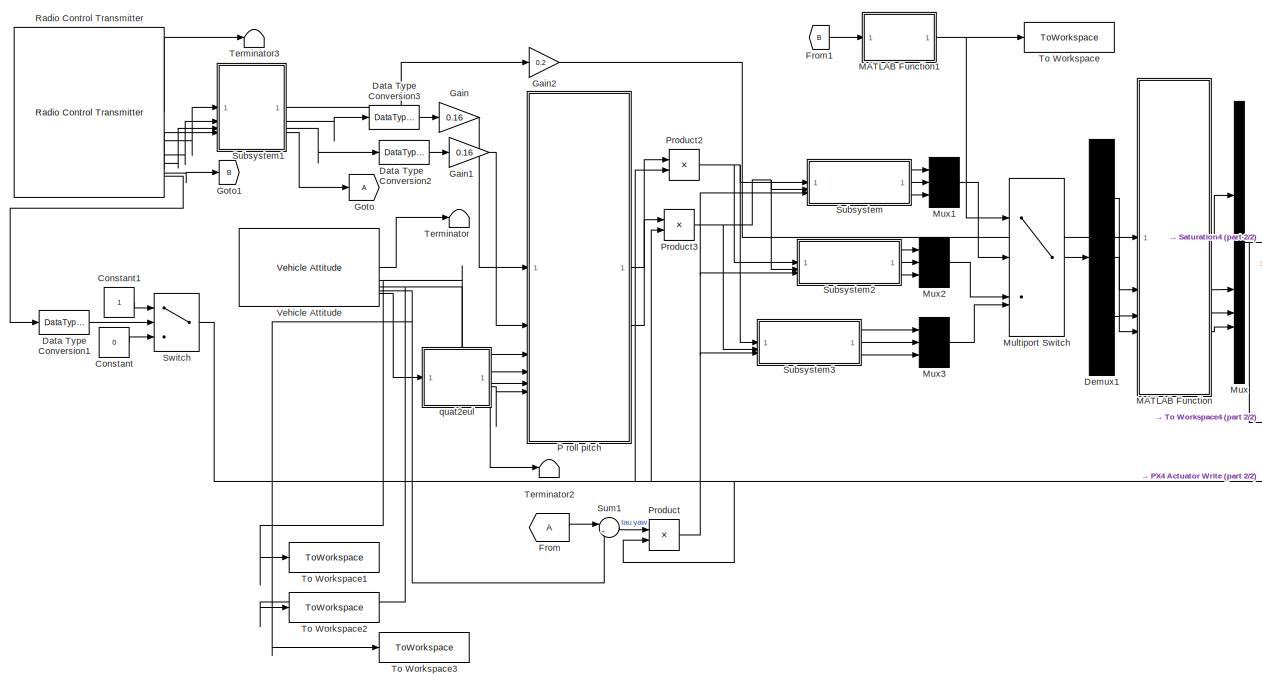
[diagram: root canvas - part 1/2, most of the canvas]
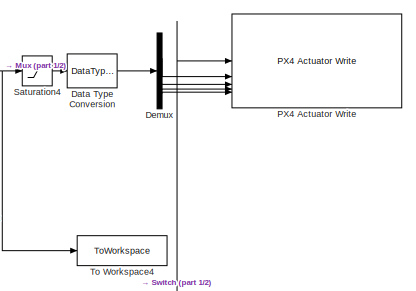
[diagram: root canvas - part 2/2, middle right region]
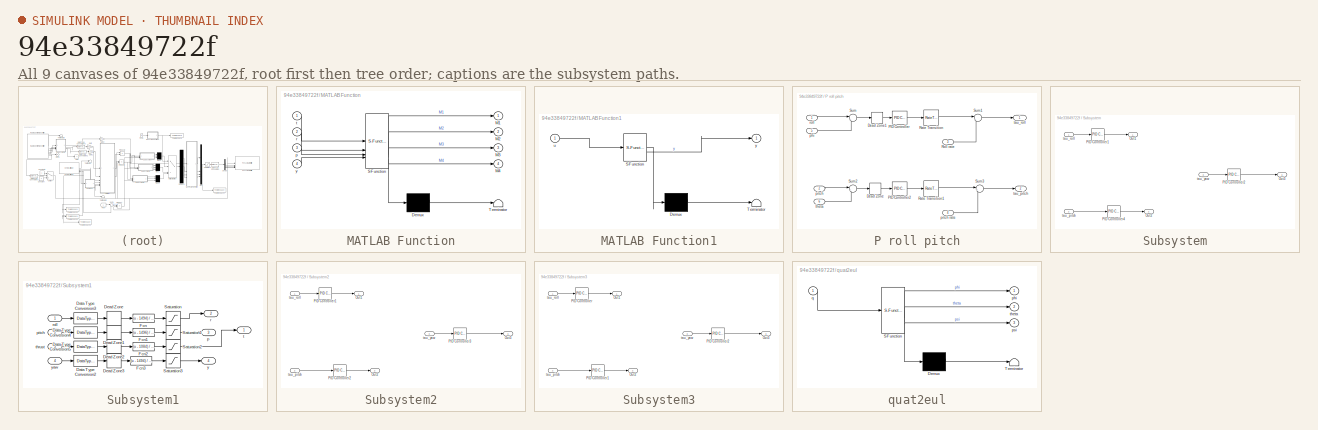
[diagram: thumbnail index - all 9 canvases of the model, root first then tree order]
MODEL slx_94e33849722f
KIND model
CONFIG AbsTol = auto
CONFIG EnableMultiTasking = on
CONFIG FixedStep = 0.001
CONFIG MaxStep = auto
CONFIG MinStep = auto
CONFIG RelTol = 1e-3
CONFIG SampleTimeConstraint = Unconstrained
CONFIG SolverName = FixedStepAuto
CONFIG StartTime = 0.0
CONFIG StopTime = inf
BLOCK [Constant] Constant
  OutDataTypeStr = boolean
  Value = 0
BLOCK [Constant] Constant1
  OutDataTypeStr = boolean
BLOCK [DataTypeConversion] Data Type Conversion
  OutDataTypeStr = single
  RndMeth = Floor
  SaturateOnIntegerOverflow = off
BLOCK [DataTypeConversion] Data Type Conversion1
  OutDataTypeStr = single
  RndMeth = Floor
  SaturateOnIntegerOverflow = off
BLOCK [DataTypeConversion] Data Type Conversion2
  OutDataTypeStr = single
  RndMeth = Floor
  SaturateOnIntegerOverflow = off
BLOCK [DataTypeConversion] Data Type Conversion3
  OutDataTypeStr = single
  RndMeth = Floor
  SaturateOnIntegerOverflow = off
BLOCK [Demux] Demux
BLOCK [Demux] Demux1
  Outputs = 3
BLOCK [From] From
BLOCK [From] From1
  GotoTag = B
BLOCK [Gain] Gain
  Gain = 0.16
BLOCK [Gain] Gain1
  Gain = 0.16
BLOCK [Gain] Gain2
  Gain = 0.2
BLOCK [Goto] Goto
BLOCK [Goto] Goto1
  GotoTag = B
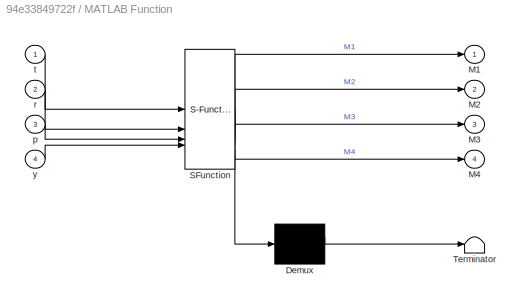
BLOCK [SubSystem] MATLAB Function
  ErrorFcn = Stateflow.Translate.translate
  PermitHierarchicalResolution = ExplicitOnly
  SFBlockType = MATLAB Function
  TreatAsAtomicUnit = on
BLOCK [Demux] MATLAB Function/ Demux 
  Outputs = 1
BLOCK [S-Function] MATLAB Function/ SFunction 
  EnableBusSupport = off
  FunctionName = sf_sfun
  PortCounts = [4 5]
  SFcnIsStateOwnerBlock = off
  SFunctionDeploymentMode = off
  Tag = Stateflow S-Function 2
BLOCK [Terminator] MATLAB Function/ Terminator 
BLOCK [Outport] MATLAB Function/M1
BLOCK [Outport] MATLAB Function/M2
  Port = 2
BLOCK [Outport] MATLAB Function/M3
  Port = 3
BLOCK [Outport] MATLAB Function/M4
  Port = 4
BLOCK [Inport] MATLAB Function/p
  Port = 3
BLOCK [Inport] MATLAB Function/r
  Port = 2
BLOCK [Inport] MATLAB Function/t
BLOCK [Inport] MATLAB Function/y
  Port = 4
BLOCK [SubSystem] MATLAB Function1
  ErrorFcn = Stateflow.Translate.translate
  PermitHierarchicalResolution = ExplicitOnly
  SFBlockType = MATLAB Function
  TreatAsAtomicUnit = on
BLOCK [Demux] MATLAB Function1/ Demux 
  Outputs = 1
BLOCK [S-Function] MATLAB Function1/ SFunction 
  EnableBusSupport = off
  FunctionName = sf_sfun
  PortCounts = [1 2]
  SFcnIsStateOwnerBlock = off
  SFunctionDeploymentMode = off
  Tag = Stateflow S-Function 1
BLOCK [Terminator] MATLAB Function1/ Terminator 
BLOCK [Inport] MATLAB Function1/u
BLOCK [Outport] MATLAB Function1/y
  VectorParamsAs1DForOutWhenUnconnected = off
BLOCK [MultiPortSwitch] Multiport Switch
  InputSameDT = off
  SaturateOnIntegerOverflow = off
BLOCK [Mux] Mux
  DisplayOption = bar
BLOCK [Mux] Mux1
  DisplayOption = bar
  Inputs = 3
BLOCK [Mux] Mux2
  DisplayOption = bar
  Inputs = 3
BLOCK [Mux] Mux3
  DisplayOption = bar
  Inputs = 3
BLOCK [SubSystem] P roll pitch
BLOCK [DeadZone] P roll pitch/Dead Zone
  LowerValue = -0.02
  UpperValue = 0.02
BLOCK [DeadZone] P roll pitch/Dead Zone1
  LowerValue = -0.02
  UpperValue = 0.02
BLOCK [Reference] P roll pitch/PID Controller  REF=slpidlib/PID Controller
  LibrarySourceBlock = simulink/Continuous/PID Controller
  SourceBlock = slpidlib/PID Controller
  SourceType = PID 1dof
BLOCK [Reference] P roll pitch/PID Controller2  REF=slpidlib/PID Controller
  LibrarySourceBlock = simulink/Continuous/PID Controller
  SourceBlock = slpidlib/PID Controller
  SourceType = PID 1dof
BLOCK [RateTransition] P roll pitch/Rate Transition
  OutPortSampleTime = 0.001
BLOCK [RateTransition] P roll pitch/Rate Transition1
  OutPortSampleTime = 0.001
BLOCK [Inport] P roll pitch/Roll rate
  Port = 3
BLOCK [Sum] P roll pitch/Sum
  Inputs = |+-
BLOCK [Sum] P roll pitch/Sum1
  Inputs = |+-
BLOCK [Sum] P roll pitch/Sum2
  Inputs = |+-
BLOCK [Sum] P roll pitch/Sum3
  Inputs = |+-
BLOCK [Inport] P roll pitch/phi
  Port = 5
BLOCK [Inport] P roll pitch/pitch
  Port = 2
BLOCK [Inport] P roll pitch/pitch rate
  Port = 4
BLOCK [Inport] P roll pitch/roll
BLOCK [Outport] P roll pitch/tau_pitch
  Port = 2
BLOCK [Outport] P roll pitch/tau_roll
BLOCK [Inport] P roll pitch/theta
  Port = 6
BLOCK [Reference] PX4 Actuator Write  REF=px4Peripheralslib/PX4 Actuator Write
  SourceBlock = px4Peripheralslib/PX4 Actuator Write
  SourceType = px4.internal.block.PX4Actuators
BLOCK [Product] Product
BLOCK [Product] Product2
BLOCK [Product] Product3
BLOCK [Reference] Radio Control Transmitter  REF=px4Sensorslib/Radio Control Transmitter
  SourceBlock = px4Sensorslib/Radio Control Transmitter
  SourceType = PX4 Radio Control Transmitter
BLOCK [Saturate] Saturation4
  LowerLimit = 0
  UpperLimit = 1
BLOCK [SubSystem] Subsystem
BLOCK [Outport] Subsystem/Out1
BLOCK [Outport] Subsystem/Out2
  Port = 2
BLOCK [Outport] Subsystem/Out3
  Port = 3
BLOCK [Reference] Subsystem/PID Controller1  REF=slpidlib/PID Controller
  LibrarySourceBlock = simulink/Continuous/PID Controller
  SourceBlock = slpidlib/PID Controller
  SourceType = PID 1dof
BLOCK [Reference] Subsystem/PID Controller2  REF=slpidlib/PID Controller
  LibrarySourceBlock = simulink/Continuous/PID Controller
  SourceBlock = slpidlib/PID Controller
  SourceType = PID 1dof
BLOCK [Reference] Subsystem/PID Controller4  REF=slpidlib/PID Controller
  LibrarySourceBlock = simulink/Continuous/PID Controller
  SourceBlock = slpidlib/PID Controller
  SourceType = PID 1dof
BLOCK [Inport] Subsystem/tau_pitch
  Port = 2
BLOCK [Inport] Subsystem/tau_roll
BLOCK [Inport] Subsystem/tau_yaw
  Port = 3
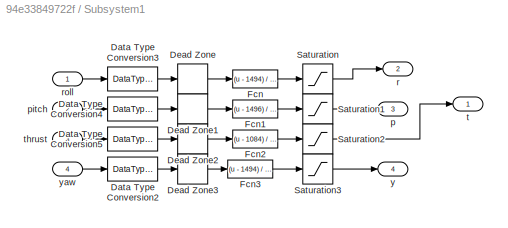
BLOCK [SubSystem] Subsystem1
BLOCK [DataTypeConversion] Subsystem1/Data Type Conversion2
  OutDataTypeStr = single
  RndMeth = Floor
  SaturateOnIntegerOverflow = off
BLOCK [DataTypeConversion] Subsystem1/Data Type Conversion3
  OutDataTypeStr = single
  RndMeth = Floor
  SaturateOnIntegerOverflow = off
BLOCK [DataTypeConversion] Subsystem1/Data Type Conversion4
  OutDataTypeStr = single
  RndMeth = Floor
  SaturateOnIntegerOverflow = off
BLOCK [DataTypeConversion] Subsystem1/Data Type Conversion5
  OutDataTypeStr = single
  RndMeth = Floor
  SaturateOnIntegerOverflow = off
BLOCK [DeadZone] Subsystem1/Dead Zone
  LowerValue = -10
  UpperValue = 10
BLOCK [DeadZone] Subsystem1/Dead Zone1
  LowerValue = -10
  UpperValue = 10
BLOCK [DeadZone] Subsystem1/Dead Zone2
  LowerValue = -5
  UpperValue = 5
BLOCK [DeadZone] Subsystem1/Dead Zone3
  LowerValue = -10
  UpperValue = 10
BLOCK [Fcn] Subsystem1/Fcn
  Expr = (u - 1494) / 409.5
BLOCK [Fcn] Subsystem1/Fcn1
  Expr = (u - 1496) / 409.5
BLOCK [Fcn] Subsystem1/Fcn2
  Expr = (u - 1084) / 819
BLOCK [Fcn] Subsystem1/Fcn3
  Expr = (u - 1494) / 409.5
BLOCK [Saturate] Subsystem1/Saturation
  LowerLimit = -1
  UpperLimit = 1
BLOCK [Saturate] Subsystem1/Saturation1
  LowerLimit = -1
  UpperLimit = 1
BLOCK [Saturate] Subsystem1/Saturation2
  LowerLimit = 0
  UpperLimit = 1
BLOCK [Saturate] Subsystem1/Saturation3
  LowerLimit = -1
  UpperLimit = 1
BLOCK [Outport] Subsystem1/p
  Port = 3
BLOCK [Inport] Subsystem1/pitch
  Port = 2
BLOCK [Outport] Subsystem1/r
  Port = 2
BLOCK [Inport] Subsystem1/roll
BLOCK [Outport] Subsystem1/t
BLOCK [Inport] Subsystem1/thrust
  Port = 3
BLOCK [Outport] Subsystem1/y
  Port = 4
BLOCK [Inport] Subsystem1/yaw
  Port = 4
BLOCK [SubSystem] Subsystem2
BLOCK [Outport] Subsystem2/Out1
BLOCK [Outport] Subsystem2/Out2
  Port = 2
BLOCK [Outport] Subsystem2/Out3
  Port = 3
BLOCK [Reference] Subsystem2/PID Controller1  REF=slpidlib/PID Controller
  LibrarySourceBlock = simulink/Continuous/PID Controller
  SourceBlock = slpidlib/PID Controller
  SourceType = PID 1dof
BLOCK [Reference] Subsystem2/PID Controller2  REF=slpidlib/PID Controller
  LibrarySourceBlock = simulink/Continuous/PID Controller
  SourceBlock = slpidlib/PID Controller
  SourceType = PID 1dof
BLOCK [Reference] Subsystem2/PID Controller3  REF=slpidlib/PID Controller
  LibrarySourceBlock = simulink/Continuous/PID Controller
  SourceBlock = slpidlib/PID Controller
  SourceType = PID 1dof
BLOCK [Inport] Subsystem2/tau_pitch
  Port = 2
BLOCK [Inport] Subsystem2/tau_roll
BLOCK [Inport] Subsystem2/tau_yaw
  Port = 3
BLOCK [SubSystem] Subsystem3
BLOCK [Outport] Subsystem3/Out1
BLOCK [Outport] Subsystem3/Out2
  Port = 2
BLOCK [Outport] Subsystem3/Out3
  Port = 3
BLOCK [Reference] Subsystem3/PID Controller  REF=slpidlib/PID Controller
  LibrarySourceBlock = simulink/Continuous/PID Controller
  SourceBlock = slpidlib/PID Controller
  SourceType = PID 1dof
BLOCK [Reference] Subsystem3/PID Controller1  REF=slpidlib/PID Controller
  LibrarySourceBlock = simulink/Continuous/PID Controller
  SourceBlock = slpidlib/PID Controller
  SourceType = PID 1dof
BLOCK [Reference] Subsystem3/PID Controller2  REF=slpidlib/PID Controller
  LibrarySourceBlock = simulink/Continuous/PID Controller
  SourceBlock = slpidlib/PID Controller
  SourceType = PID 1dof
BLOCK [Inport] Subsystem3/tau_pitch
  Port = 2
BLOCK [Inport] Subsystem3/tau_roll
BLOCK [Inport] Subsystem3/tau_yaw
  Port = 3
BLOCK [Sum] Sum1
  Inputs = |+-
BLOCK [Switch] Switch
  Criteria = u2 > Threshold
  InputSameDT = off
  SaturateOnIntegerOverflow = off
  Threshold = 1500
BLOCK [Terminator] Terminator
BLOCK [Terminator] Terminator2
BLOCK [Terminator] Terminator3
BLOCK [ToWorkspace] To Workspace
  FixptAsFi = on
  MaxDataPoints = inf
  SampleTime = -1
  SaveFormat = Structure With Time
  VariableName = pid
BLOCK [ToWorkspace] To Workspace1
  FixptAsFi = on
  MaxDataPoints = inf
  SampleTime = -1
  SaveFormat = Structure With Time
  VariableName = rollrate
BLOCK [ToWorkspace] To Workspace2
  FixptAsFi = on
  MaxDataPoints = inf
  SampleTime = -1
  SaveFormat = Structure With Time
  VariableName = pitchrate
BLOCK [ToWorkspace] To Workspace3
  FixptAsFi = on
  MaxDataPoints = inf
  SampleTime = -1
  SaveFormat = Structure With Time
  VariableName = yawrate
BLOCK [ToWorkspace] To Workspace4
  FixptAsFi = on
  MaxDataPoints = inf
  SampleTime = -1
  SaveFormat = Structure With Time
  VariableName = motores
BLOCK [Reference] Vehicle Attitude  REF=px4Sensorslib/Vehicle Attitude
  SourceBlock = px4Sensorslib/Vehicle Attitude
  SourceType = PX4 Vehicle Attitude
BLOCK [SubSystem] quat2eul
  ErrorFcn = Stateflow.Translate.translate
  PermitHierarchicalResolution = ExplicitOnly
  SFBlockType = MATLAB Function
  TreatAsAtomicUnit = on
BLOCK [Demux] quat2eul/ Demux 
  Outputs = 1
BLOCK [S-Function] quat2eul/ SFunction 
  EnableBusSupport = off
  FunctionName = sf_sfun
  PortCounts = [1 4]
  SFcnIsStateOwnerBlock = off
  SFunctionDeploymentMode = off
  Tag = Stateflow S-Function 10
BLOCK [Terminator] quat2eul/ Terminator 
BLOCK [Outport] quat2eul/phi
  VectorParamsAs1DForOutWhenUnconnected = off
BLOCK [Outport] quat2eul/psi
  Port = 3
  VectorParamsAs1DForOutWhenUnconnected = off
BLOCK [Inport] quat2eul/q
BLOCK [Outport] quat2eul/theta
  Port = 2
  VectorParamsAs1DForOutWhenUnconnected = off
LINE Constant1:1 -> Switch:1
LINE Constant:1 -> Switch:3
LINE Data Type Conversion1:1 -> Switch:2
LINE Data Type Conversion2:1 -> Gain1:1
LINE Data Type Conversion3:1 -> Gain:1
LINE Data Type Conversion:1 -> Demux:1
LINE Demux1:1 -> MATLAB Function:2
LINE Demux1:2 -> MATLAB Function:3
LINE Demux1:3 -> MATLAB Function:4
LINE Demux:1 -> PX4 Actuator Write:2
LINE Demux:2 -> PX4 Actuator Write:3
LINE Demux:3 -> PX4 Actuator Write:4
LINE Demux:4 -> PX4 Actuator Write:5
LINE From1:1 -> MATLAB Function1:1
LINE From:1 -> Sum1:1
LINE Gain1:1 -> P roll pitch:2
LINE Gain2:1 -> MATLAB Function:1
LINE Gain:1 -> P roll pitch:1
NET MATLAB Function1:1 -> Multiport Switch:1, To Workspace:1
LINE MATLAB Function:1 -> Mux:1
LINE MATLAB Function:2 -> Mux:2
LINE MATLAB Function:3 -> Mux:3
LINE MATLAB Function:4 -> Mux:4
LINE Multiport Switch:1 -> Demux1:1
LINE Mux1:1 -> Multiport Switch:2
LINE Mux2:1 -> Multiport Switch:3
LINE Mux3:1 -> Multiport Switch:4
NET Mux:1 -> Saturation4:1, To Workspace4:1
LINE P roll pitch/Dead Zone1:1 -> P roll pitch/PID Controller:1
LINE P roll pitch/Dead Zone:1 -> P roll pitch/PID Controller2:1
LINE P roll pitch/PID Controller2:1 -> P roll pitch/Rate Transition1:1
LINE P roll pitch/PID Controller:1 -> P roll pitch/Rate Transition:1
LINE P roll pitch/Rate Transition1:1 -> P roll pitch/Sum3:1
LINE P roll pitch/Rate Transition:1 -> P roll pitch/Sum1:1
LINE P roll pitch/Roll rate:1 -> P roll pitch/Sum1:2
LINE P roll pitch/Sum1:1 -> P roll pitch/tau_roll:1
LINE P roll pitch/Sum2:1 -> P roll pitch/Dead Zone:1
LINE P roll pitch/Sum3:1 -> P roll pitch/tau_pitch:1
LINE P roll pitch/Sum:1 -> P roll pitch/Dead Zone1:1
LINE P roll pitch/phi:1 -> P roll pitch/Sum:2
LINE P roll pitch/pitch rate:1 -> P roll pitch/Sum3:2
LINE P roll pitch/pitch:1 -> P roll pitch/Sum2:1
LINE P roll pitch/roll:1 -> P roll pitch/Sum:1
LINE P roll pitch/theta:1 -> P roll pitch/Sum2:2
LINE P roll pitch:1 -> Product2:1
LINE P roll pitch:2 -> Product3:1
NET Product2:1 -> Subsystem2:1, Subsystem3:1, Subsystem:1
NET Product3:1 -> Subsystem2:2, Subsystem3:2, Subsystem:2
NET Product:1 -> Subsystem2:3, Subsystem3:3, Subsystem:3
LINE Radio Control Transmitter:1 -> Terminator3:1
LINE Radio Control Transmitter:2 -> Subsystem1:1
LINE Radio Control Transmitter:3 -> Subsystem1:2
LINE Radio Control Transmitter:4 -> Subsystem1:3
LINE Radio Control Transmitter:5 -> Subsystem1:4
LINE Radio Control Transmitter:6 -> Goto1:1
LINE Radio Control Transmitter:7 -> Data Type Conversion1:1
LINE Saturation4:1 -> Data Type Conversion:1
LINE Subsystem/PID Controller1:1 -> Subsystem/Out1:1
LINE Subsystem/PID Controller2:1 -> Subsystem/Out3:1
LINE Subsystem/PID Controller4:1 -> Subsystem/Out2:1
LINE Subsystem/tau_pitch:1 -> Subsystem/PID Controller4:1
LINE Subsystem/tau_roll:1 -> Subsystem/PID Controller1:1
LINE Subsystem/tau_yaw:1 -> Subsystem/PID Controller2:1
LINE Subsystem1/Data Type Conversion2:1 -> Subsystem1/Dead Zone3:1
LINE Subsystem1/Data Type Conversion3:1 -> Subsystem1/Dead Zone:1
LINE Subsystem1/Data Type Conversion4:1 -> Subsystem1/Dead Zone1:1
LINE Subsystem1/Data Type Conversion5:1 -> Subsystem1/Dead Zone2:1
LINE Subsystem1/Dead Zone1:1 -> Subsystem1/Fcn1:1
LINE Subsystem1/Dead Zone2:1 -> Subsystem1/Fcn2:1
LINE Subsystem1/Dead Zone3:1 -> Subsystem1/Fcn3:1
LINE Subsystem1/Dead Zone:1 -> Subsystem1/Fcn:1
LINE Subsystem1/Fcn1:1 -> Subsystem1/Saturation1:1
LINE Subsystem1/Fcn2:1 -> Subsystem1/Saturation2:1
LINE Subsystem1/Fcn3:1 -> Subsystem1/Saturation3:1
LINE Subsystem1/Fcn:1 -> Subsystem1/Saturation:1
LINE Subsystem1/Saturation1:1 -> Subsystem1/p:1
LINE Subsystem1/Saturation2:1 -> Subsystem1/t:1
LINE Subsystem1/Saturation3:1 -> Subsystem1/y:1
LINE Subsystem1/Saturation:1 -> Subsystem1/r:1
LINE Subsystem1/pitch:1 -> Subsystem1/Data Type Conversion4:1
LINE Subsystem1/roll:1 -> Subsystem1/Data Type Conversion3:1
LINE Subsystem1/thrust:1 -> Subsystem1/Data Type Conversion5:1
LINE Subsystem1/yaw:1 -> Subsystem1/Data Type Conversion2:1
LINE Subsystem1:1 -> Gain2:1
LINE Subsystem1:2 -> Data Type Conversion3:1
LINE Subsystem1:3 -> Data Type Conversion2:1
LINE Subsystem1:4 -> Goto:1
LINE Subsystem2/PID Controller1:1 -> Subsystem2/Out1:1
LINE Subsystem2/PID Controller2:1 -> Subsystem2/Out2:1
LINE Subsystem2/PID Controller3:1 -> Subsystem2/Out3:1
LINE Subsystem2/tau_pitch:1 -> Subsystem2/PID Controller2:1
LINE Subsystem2/tau_roll:1 -> Subsystem2/PID Controller1:1
LINE Subsystem2/tau_yaw:1 -> Subsystem2/PID Controller3:1
LINE Subsystem2:1 -> Mux2:1
LINE Subsystem2:2 -> Mux2:2
LINE Subsystem2:3 -> Mux2:3
LINE Subsystem3/PID Controller1:1 -> Subsystem3/Out2:1
LINE Subsystem3/PID Controller2:1 -> Subsystem3/Out3:1
LINE Subsystem3/PID Controller:1 -> Subsystem3/Out1:1
LINE Subsystem3/tau_pitch:1 -> Subsystem3/PID Controller1:1
LINE Subsystem3/tau_roll:1 -> Subsystem3/PID Controller:1
LINE Subsystem3/tau_yaw:1 -> Subsystem3/PID Controller2:1
LINE Subsystem3:1 -> Mux3:1
LINE Subsystem3:2 -> Mux3:2
LINE Subsystem3:3 -> Mux3:3
LINE Subsystem:1 -> Mux1:1
LINE Subsystem:2 -> Mux1:2
LINE Subsystem:3 -> Mux1:3
LINE Sum1:1 -> Product:1
NET Switch:1 -> PX4 Actuator Write:1, Product2:2, Product3:2, Product:2
LINE Vehicle Attitude:1 -> Terminator:1
NET Vehicle Attitude:2 -> P roll pitch:3, To Workspace1:1
NET Vehicle Attitude:3 -> P roll pitch:4, To Workspace2:1
NET Vehicle Attitude:4 -> Sum1:2, To Workspace3:1
LINE Vehicle Attitude:5 -> quat2eul:1
LINE quat2eul:1 -> P roll pitch:5
LINE quat2eul:2 -> P roll pitch:6
LINE quat2eul:3 -> Terminator2:1
note: NET lines group one-source signal fan-out (src -> all destinations, sorted); 1:1 wires keep LINE
CHART MATLAB Function1 states=1 transitions=1
  STATE_LABEL 'eML_blk_kernel()'
  STATE_LABEL 'SCRIPT:\nfunction y = fcn(u)\n%#codegen\ny=0;\nif u>1000 && u<1200 \n   y=1;\nelseif    u >= 1200 && u<1400\n    y=2;\nelse\n    y=3;\nend\n'
CHART MATLAB Function states=1 transitions=1
  STATE_LABEL 'eML_blk_kernel()'
  STATE_LABEL 'SCRIPT:\nfunction [M1,M2,M3,M4]  = fcn(t,r, p, y)\nM1 = t - 0.707107*r + 0.707107*p + y;\nM2 = t + 0.707107*r - 0.707107*p + y;\nM3 = t + 0.707107*r + 0.707107*p - y;\nM4 = t - 0.707107*r - 0.707107*p - y;'
CHART quat2eul states=1 transitions=1
  STATE_LABEL 'eML_blk_kernel()'
  STATE_LABEL 'SCRIPT:\nfunction [phi,theta,psi] = quat2eul(q)\n\n% Quaternion conversion to Euler angles based on the PX4 Firmware v1.10.2\n% release.\n\nphi = atan2(2*(q(1)*q(2) + q(3)* q(4)), q(1)^2 - q(2)^2 - q(3)^2 + q(4)^2);\ntheta = asin(-2*(q(2)*q(4) - q(1)*q(3)));\npsi = atan2(2*(q(2)*q(3) + q(1)* q(4)), q(1)^2 + q(2)^2 - q(3)^2 - q(4)^2);\nend'
CHART  states=0 transitions=0
CHART  states=0 transitions=0
CHART  states=0 transitions=0
